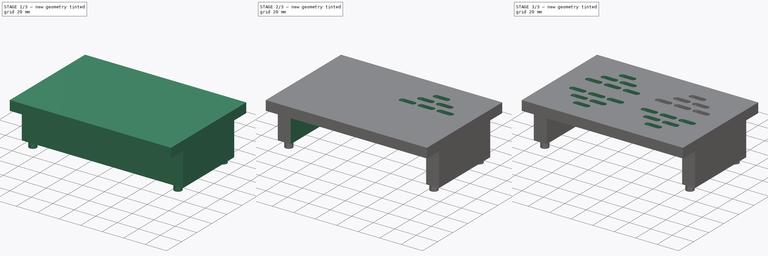
[diagram: build sequence overview — one tinted view per stage of 3, left to right]
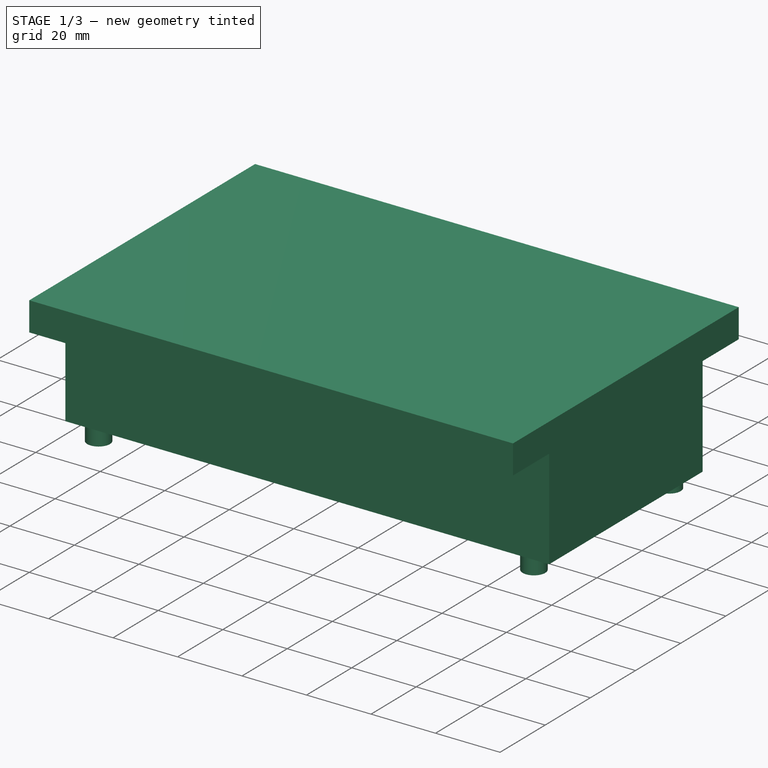
[diagram: stage 1 of 3 — iso view after this stage's code; geometry added in this stage tinted green]
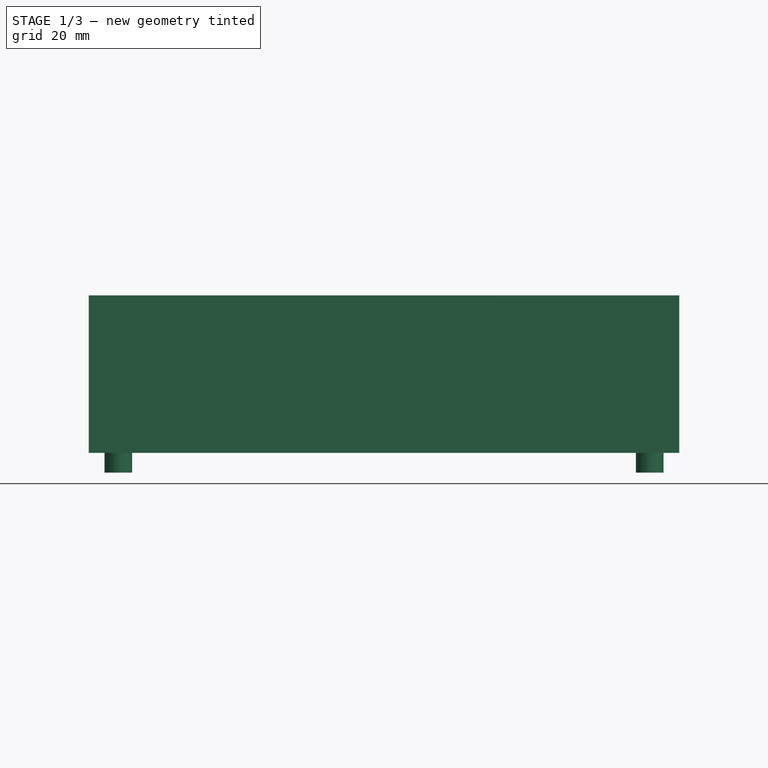
[diagram: stage 1 of 3 — front view after this stage's code; geometry added in this stage tinted green]
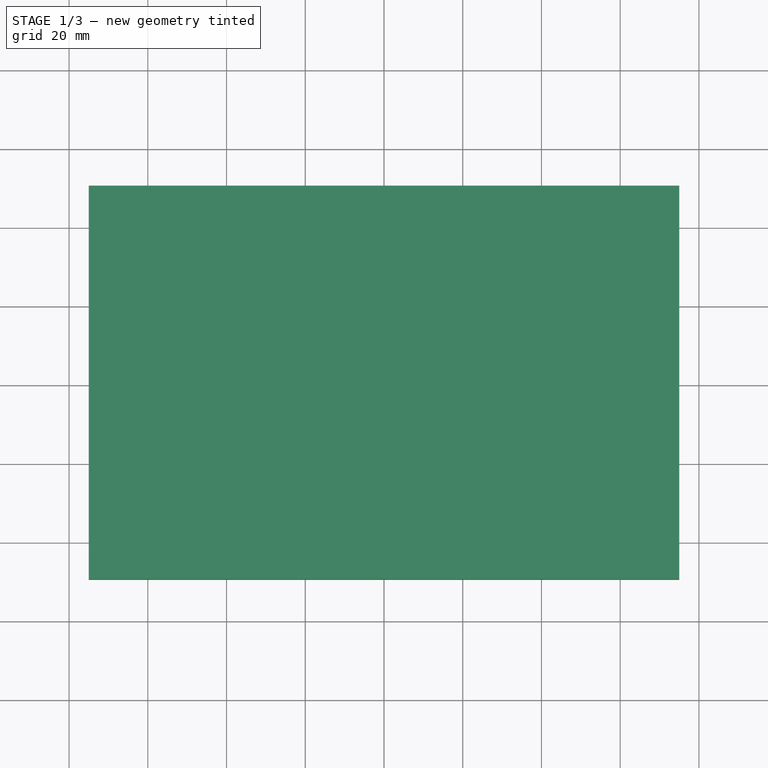
[diagram: stage 1 of 3 — top view after this stage's code; geometry added in this stage tinted green]
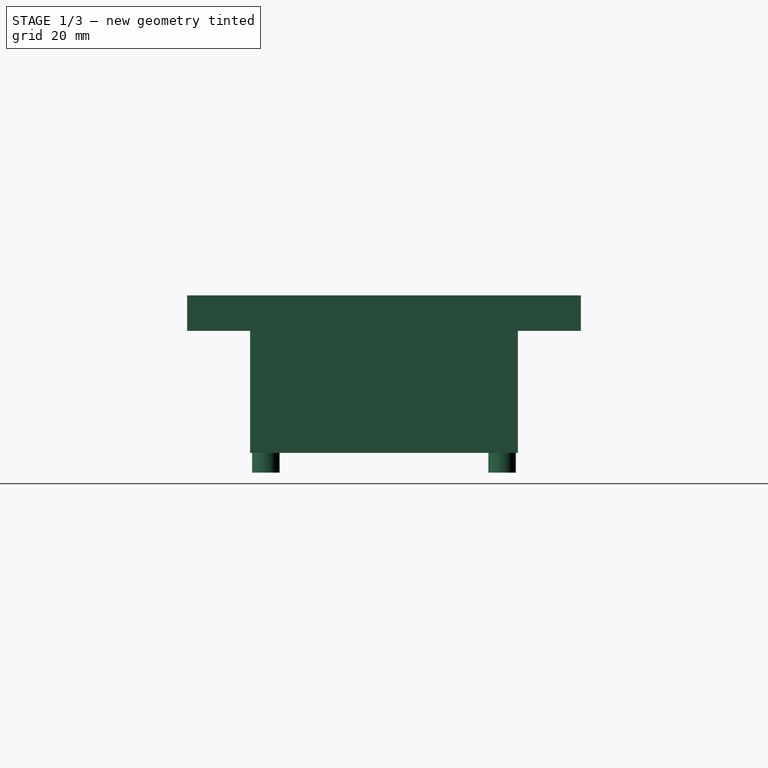
[diagram: stage 1 of 3 — right view after this stage's code; geometry added in this stage tinted green]
FCSTD DOCUMENT  (FreeCAD 0.21R33668 +26 (Git))
Label: tapa
License: All rights reserved
LicenseURL: https://en.wikipedia.org/wiki/All_rights_reserved
objects: Sketcher::SketchObject×6, PartDesign::Pocket×4, PartDesign::Pad×2, PartDesign::Mirrored×2, PartDesign::Body×1
note: 21 computed .brp shape members not serialized (recipe doc carries the construction recipe); baked Part::Feature solids carry a one-line shape summary decoded from their .brp

FEATURE [Sketcher::SketchObject] Sketch
  FullyConstrained = true
  MapMode = 5
  Support = -> [XY_Plane]
  sketch-geometry (4):
    g0: LineSegment StartX=-75 StartY=50 StartZ=0 EndX=75 EndY=50 EndZ=0
    g1: LineSegment StartX=75 StartY=50 StartZ=0 EndX=75 EndY=-50 EndZ=0
    g2: LineSegment StartX=75 StartY=-50 StartZ=0 EndX=-75 EndY=-50 EndZ=0
    g3: LineSegment StartX=-75 StartY=-50 StartZ=0 EndX=-75 EndY=50 EndZ=0
  constraints (12):
    c: Coincident(g0,g1)
    c: Coincident(g1,g2)
    c: Coincident(g2,g3)
    c: Coincident(g3,g0)
    c: Horizontal(g0)
    c: Horizontal(g2)
    c: Vertical(g1)
    c: Vertical(g3)
    c: DistanceY(g3,g3) = 100
    c: DistanceX(g0,g0) = 150
    c: DistanceX(g0,g-1) = 75
    c: DistanceY(g-1,g0) = 50
FEATURE [PartDesign::Pad] Pad
  Direction = (0,0,1)
  Length = 40
  Length2 = 10
  Profile = -> Sketch
  ReferenceAxis = -> Sketch [N_Axis]
  Type = 0
FEATURE [Sketcher::SketchObject] Sketch001
  ExternalGeometry = -> [Pad]
  FullyConstrained = true
  MapMode = 5
  Placement = pos=(0,0,0) rot=(1,0,0;3.14159rad)
  Support = -> [Pad]
  sketch-geometry (4):
    g0: Circle CenterX=67.5 CenterY=30 CenterZ=0 NormalX=0 NormalY=0 NormalZ=1 AngleXU=0 Radius=3.5
    g1: Circle CenterX=67.5 CenterY=-30 CenterZ=0 NormalX=0 NormalY=0 NormalZ=1 AngleXU=0 Radius=3.5
    g2: Circle CenterX=-67.5 CenterY=-30 CenterZ=0 NormalX=0 NormalY=0 NormalZ=1 AngleXU=0 Radius=3.5
    g3: Circle CenterX=-67.5 CenterY=30 CenterZ=0 NormalX=0 NormalY=0 NormalZ=1 AngleXU=0 Radius=3.5
  constraints (12):
    c: DistanceY(g3,g-6) = 20
    c: DistanceY(g-5,g2) = 20
    c: DistanceY(g-4,g1) = 20
    c: DistanceY(g0,g-6) = 20
    c: DistanceX(g-6,g3) = 7.5
    c: DistanceX(g-5,g2) = 7.5
    c: DistanceX(g1,g-4) = 7.5
    c: DistanceX(g0,g-6) = 7.5
    c: Diameter(g3) = 7
    c: Diameter(g0) = 7
    c: Diameter(g1) = 7
    c: Diameter(g2) = 7
FEATURE [PartDesign::Pad] Pad001
  BaseFeature = -> Pad
  Direction = (0,0,-1)
  Length = 5
  Length2 = 10
  Profile = -> Sketch001
  ReferenceAxis = -> Sketch001 [N_Axis]
  Type = 0
FEATURE [Sketcher::SketchObject] Sketch002
  ExternalGeometry = -> [Pad001]
  FullyConstrained = true
  MapMode = 5
  Placement = pos=(75,0,0) rot=(0.57735,0.57735,0.57735;2.0944rad)
  Support = -> [Pad001]
  sketch-geometry (8):
    g0: LineSegment StartX=50 StartY=0 StartZ=0 EndX=34 EndY=0 EndZ=0
    g1: LineSegment StartX=34 StartY=0 StartZ=0 EndX=34 EndY=31 EndZ=0
    g2: LineSegment StartX=34 StartY=31 StartZ=0 EndX=50 EndY=31 EndZ=0
    g3: LineSegment StartX=50 StartY=31 StartZ=0 EndX=50 EndY=0 EndZ=0
    g4: LineSegment StartX=-50 StartY=0 StartZ=0 EndX=-34 EndY=0 EndZ=0
    g5: LineSegment StartX=-34 StartY=0 StartZ=0 EndX=-34 EndY=31 EndZ=0
    g6: LineSegment StartX=-34 StartY=31 StartZ=0 EndX=-50 EndY=31 EndZ=0
    g7: LineSegment StartX=-50 StartY=31 StartZ=0 EndX=-50 EndY=0 EndZ=0
  constraints (22):
    c: Coincident(g0,g1)
    c: Coincident(g1,g2)
    c: Coincident(g2,g3)
    c: Coincident(g3,g0)
    c: Horizontal(g0)
    c: Horizontal(g2)
    c: Vertical(g1)
    c: Vertical(g3)
    c: Coincident(g0,g-5)
    c: Coincident(g4,g5)
    c: Coincident(g5,g6)
    c: Coincident(g6,g7)
    c: Coincident(g7,g4)
    c: Horizontal(g4)
    c: Horizontal(g6)
    c: Vertical(g5)
    c: Vertical(g7)
    c: Coincident(g4,g-6)
    c: DistanceY(g3,g3) = 31
    c: DistanceX(g2,g2) = 16
    c: DistanceX(g6,g6) = 16
    c: DistanceY(g5,g5) = 31
FEATURE [PartDesign::Pocket] Pocket
  BaseFeature = -> Pad001
  Direction = (-1,0,0)
  Length = 150
  Length2 = 5
  Profile = -> Sketch002
  ReferenceAxis = -> Sketch002 [N_Axis]
  Type = 0
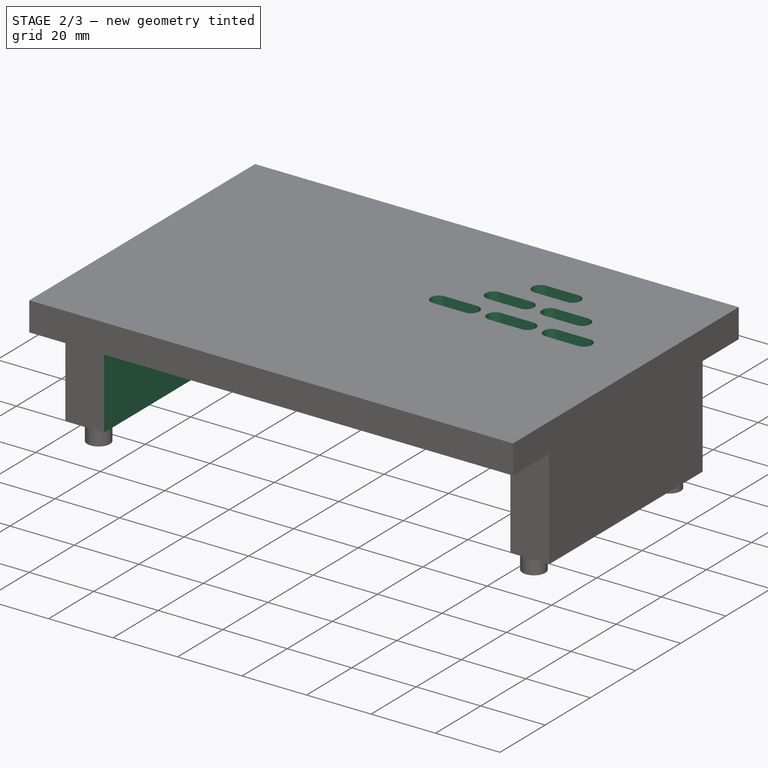
[diagram: stage 2 of 3 — iso view after this stage's code; geometry added in this stage tinted green]
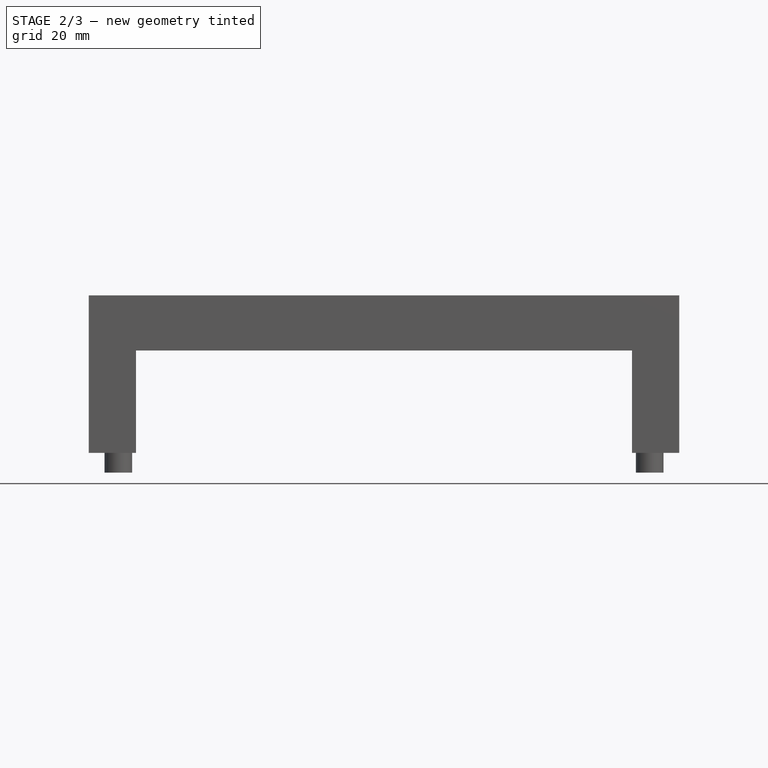
[diagram: stage 2 of 3 — front view after this stage's code; geometry added in this stage tinted green]
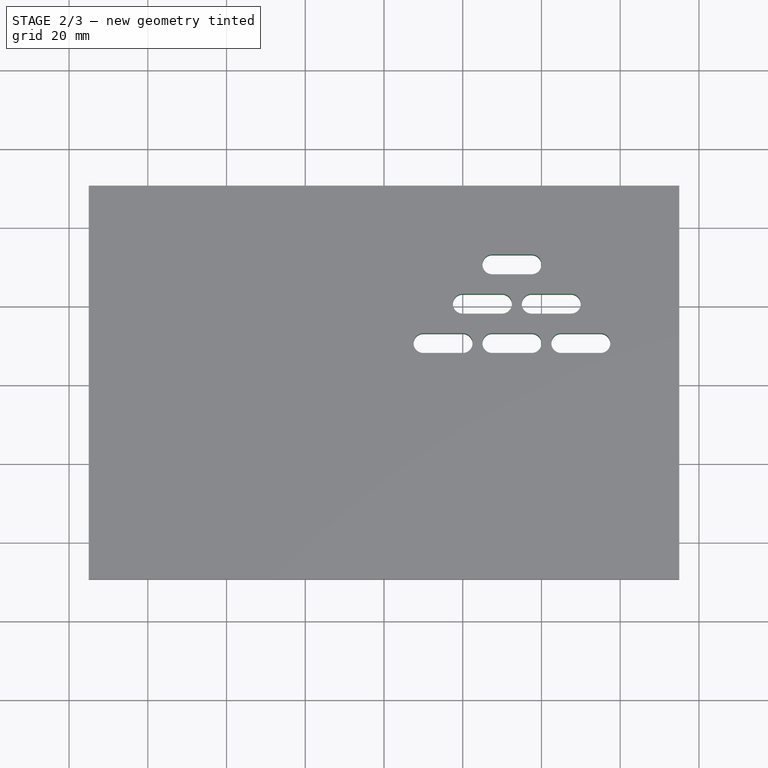
[diagram: stage 2 of 3 — top view after this stage's code; geometry added in this stage tinted green]
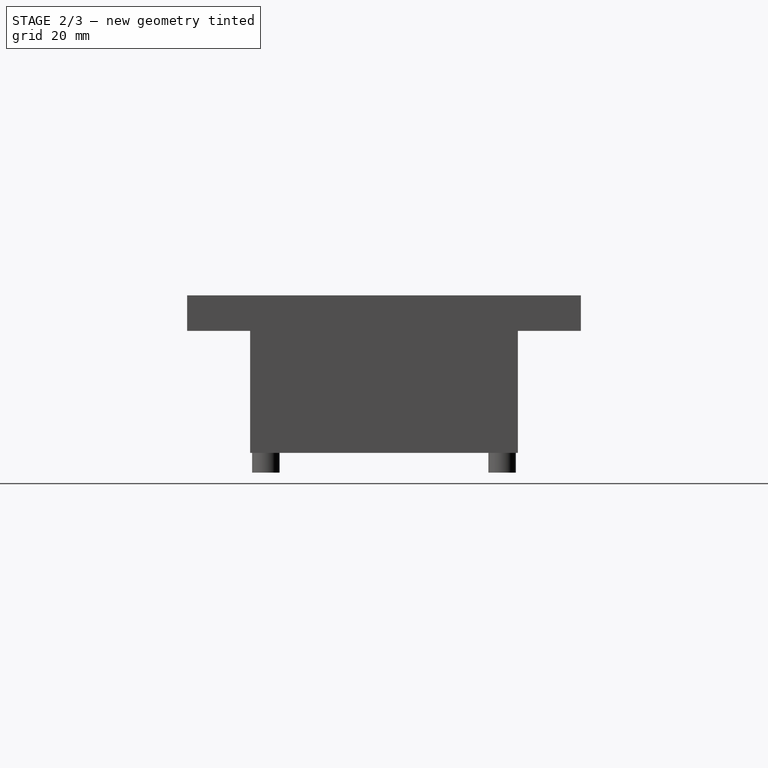
[diagram: stage 2 of 3 — right view after this stage's code; geometry added in this stage tinted green]
FEATURE [Sketcher::SketchObject] Sketch003
  ExternalGeometry = -> [Pocket]
  FullyConstrained = true
  MapMode = 5
  Placement = pos=(0,-34,0) rot=(1,0,0;1.5708rad)
  Support = -> [Pocket]
  sketch-geometry (4):
    g0: LineSegment StartX=-63 StartY=0 StartZ=0 EndX=63 EndY=0 EndZ=0
    g1: LineSegment StartX=63 StartY=0 StartZ=0 EndX=63 EndY=26 EndZ=0
    g2: LineSegment StartX=63 StartY=26 StartZ=0 EndX=-63 EndY=26 EndZ=0
    g3: LineSegment StartX=-63 StartY=26 StartZ=0 EndX=-63 EndY=0 EndZ=0
  constraints (12):
    c: Coincident(g0,g1)
    c: Coincident(g1,g2)
    c: Coincident(g2,g3)
    c: Coincident(g3,g0)
    c: Horizontal(g0)
    c: Horizontal(g2)
    c: Vertical(g1)
    c: Vertical(g3)
    c: PointOnObject(g0,g-3)
    c: DistanceX(g-6,g0) = 12
    c: DistanceX(g0,g-4) = 12
    c: DistanceY(g2,g-8) = 5
FEATURE [PartDesign::Pocket] Pocket001
  BaseFeature = -> Pocket
  Direction = (0,1,-2e-16)
  Length = 100
  Length2 = 5
  Profile = -> Sketch003
  ReferenceAxis = -> Sketch003 [N_Axis]
  Type = 0
FEATURE [Sketcher::SketchObject] Sketch004
  ExternalGeometry = -> [Pocket001]
  FullyConstrained = true
  MapMode = 5
  Placement = pos=(0,0,40) rot=(0,0,1;0rad)
  Support = -> [Pocket001]
  sketch-geometry (24):
    g0: ArcOfCircle CenterX=37.5 CenterY=20 CenterZ=0 NormalX=0 NormalY=0 NormalZ=1 AngleXU=0 Radius=2.5 StartAngle=1.5708 EndAngle=4.71239
    g1: ArcOfCircle CenterX=47.5 CenterY=20 CenterZ=0 NormalX=0 NormalY=0 NormalZ=1 AngleXU=0 Radius=2.5 StartAngle=4.71239 EndAngle=7.85398
    g2: LineSegment StartX=37.5 StartY=17.5 StartZ=0 EndX=47.5 EndY=17.5 EndZ=0
    g3: LineSegment StartX=47.5 StartY=22.5 StartZ=0 EndX=37.5 EndY=22.5 EndZ=0
    g4: ArcOfCircle CenterX=45 CenterY=10 CenterZ=0 NormalX=0 NormalY=0 NormalZ=1 AngleXU=0 Radius=2.5 StartAngle=1.5708 EndAngle=4.71239
    g5: ArcOfCircle CenterX=55 CenterY=10 CenterZ=0 NormalX=0 NormalY=0 NormalZ=1 AngleXU=0 Radius=2.5 StartAngle=4.71239 EndAngle=7.85398
    g6: LineSegment StartX=45 StartY=7.5 StartZ=0 EndX=55 EndY=7.5 EndZ=0
    g7: LineSegment StartX=55 StartY=12.5 StartZ=0 EndX=45 EndY=12.5 EndZ=0
    g8: ArcOfCircle CenterX=27.5 CenterY=30 CenterZ=0 NormalX=0 NormalY=0 NormalZ=1 AngleXU=0 Radius=2.5 StartAngle=1.5708 EndAngle=4.71239
    g9: ArcOfCircle CenterX=37.5 CenterY=30 CenterZ=0 NormalX=0 NormalY=0 NormalZ=1 AngleXU=0 Radius=2.5 StartAngle=4.71239 EndAngle=7.85398
    g10: LineSegment StartX=27.5 StartY=27.5 StartZ=0 EndX=37.5 EndY=27.5 EndZ=0
    g11: LineSegment StartX=37.5 StartY=32.5 StartZ=0 EndX=27.5 EndY=32.5 EndZ=0
    g12: ArcOfCircle CenterX=20 CenterY=20 CenterZ=0 NormalX=0 NormalY=0 NormalZ=1 AngleXU=0 Radius=2.5 StartAngle=1.5708 EndAngle=4.71239
    g13: ArcOfCircle CenterX=30 CenterY=20 CenterZ=0 NormalX=0 NormalY=0 NormalZ=1 AngleXU=0 Radius=2.5 StartAngle=4.71239 EndAngle=7.85398
    g14: LineSegment StartX=20 StartY=17.5 StartZ=0 EndX=30 EndY=17.5 EndZ=0
    g15: LineSegment StartX=30 StartY=22.5 StartZ=0 EndX=20 EndY=22.5 EndZ=0
    g16: ArcOfCircle CenterX=10 CenterY=10 CenterZ=0 NormalX=0 NormalY=0 NormalZ=1 AngleXU=0 Radius=2.5 StartAngle=1.5708 EndAngle=4.71239
    g17: ArcOfCircle CenterX=20 CenterY=10 CenterZ=0 NormalX=0 NormalY=0 NormalZ=1 AngleXU=0 Radius=2.5 StartAngle=4.71239 EndAngle=7.85398
    g18: LineSegment StartX=10 StartY=7.5 StartZ=0 EndX=20 EndY=7.5 EndZ=0
    g19: LineSegment StartX=20 StartY=12.5 StartZ=0 EndX=10 EndY=12.5 EndZ=0
    g20: ArcOfCircle CenterX=27.5 CenterY=10 CenterZ=0 NormalX=0 NormalY=0 NormalZ=1 AngleXU=0 Radius=2.5 StartAngle=1.5708 EndAngle=4.71239
    g21: ArcOfCircle CenterX=37.5 CenterY=10 CenterZ=0 NormalX=0 NormalY=0 NormalZ=1 AngleXU=0 Radius=2.5 StartAngle=4.71239 EndAngle=7.85398
    g22: LineSegment StartX=27.5 StartY=7.5 StartZ=0 EndX=37.5 EndY=7.5 EndZ=0
    g23: LineSegment StartX=37.5 StartY=12.5 StartZ=0 EndX=27.5 EndY=12.5 EndZ=0
  constraints (60):
    c: Tangent(g0,g2) = -1.5708
    c: Tangent(g2,g1) = -1.5708
    c: Tangent(g1,g3) = -1.5708
    c: Tangent(g3,g0) = -1.5708
    c: Equal(g0,g1)
    c: Horizontal(g2)
    c: Tangent(g4,g6) = -1.5708
    c: Tangent(g6,g5) = -1.5708
    c: Tangent(g5,g7) = -1.5708
    c: Tangent(g7,g4) = -1.5708
    c: Equal(g4,g5)
    c: Horizontal(g6)
    c: DistanceY(g4,g4) = 5
    c: DistanceY(g0,g0) = 5
    c: DistanceX(g3,g3) = 10
    c: DistanceX(g7,g7) = 10
    c: DistanceX(g-1,g0) = 37.5
    c: DistanceX(g-1,g4) = 45
    c: Tangent(g8,g10) = -1.5708
    c: Tangent(g10,g9) = -1.5708
    c: Tangent(g9,g11) = -1.5708
    c: Tangent(g11,g8) = -1.5708
    c: Equal(g8,g9)
    c: Horizontal(g10)
    c: DistanceY(g8,g8) = 5
    c: DistanceX(g11,g11) = 10
    c: DistanceY(g-1,g8) = 32.5
    c: DistanceY(g-1,g0) = 22.5
    c: DistanceY(g-1,g4) = 12.5
    c: Tangent(g12,g14) = -1.5708
    c: Tangent(g14,g13) = -1.5708
    c: Tangent(g13,g15) = -1.5708
    c: Tangent(g15,g12) = -1.5708
    c: Equal(g12,g13)
    c: Horizontal(g14)
    c: Tangent(g16,g18) = -1.5708
    c: Tangent(g18,g17) = -1.5708
    c: Tangent(g17,g19) = -1.5708
    c: Tangent(g19,g16) = -1.5708
    c: Equal(g16,g17)
    c: Horizontal(g18)
    c: Tangent(g20,g22) = -1.5708
    c: Tangent(g22,g21) = -1.5708
    c: Tangent(g21,g23) = -1.5708
    c: Tangent(g23,g20) = -1.5708
    c: Equal(g20,g21)
    c: Horizontal(g22)
    c: DistanceX(g15,g15) = 10
    c: DistanceX(g19,g19) = 10
    c: DistanceX(g23,g23) = 10
    c: DistanceY(g12,g12) = 5
    c: DistanceY(g16,g16) = 5
    c: DistanceY(g20,g20) = 5
    c: DistanceX(g-1,g20) = 27.5
    c: DistanceY(g21,g4) = 0
    c: DistanceY(g17,g20) = 0
    c: DistanceX(g-1,g16) = 10
    c: DistanceX(g-1,g12) = 20
    c: DistanceY(g0,g12) = 0
    c: DistanceX(g8,g20) = 0
FEATURE [PartDesign::Pocket] Pocket002
  BaseFeature = -> Pocket001
  Direction = (0,0,-1)
  Length = 17
  Length2 = 5
  Profile = -> Sketch004
  ReferenceAxis = -> Sketch004 [N_Axis]
  Type = 0
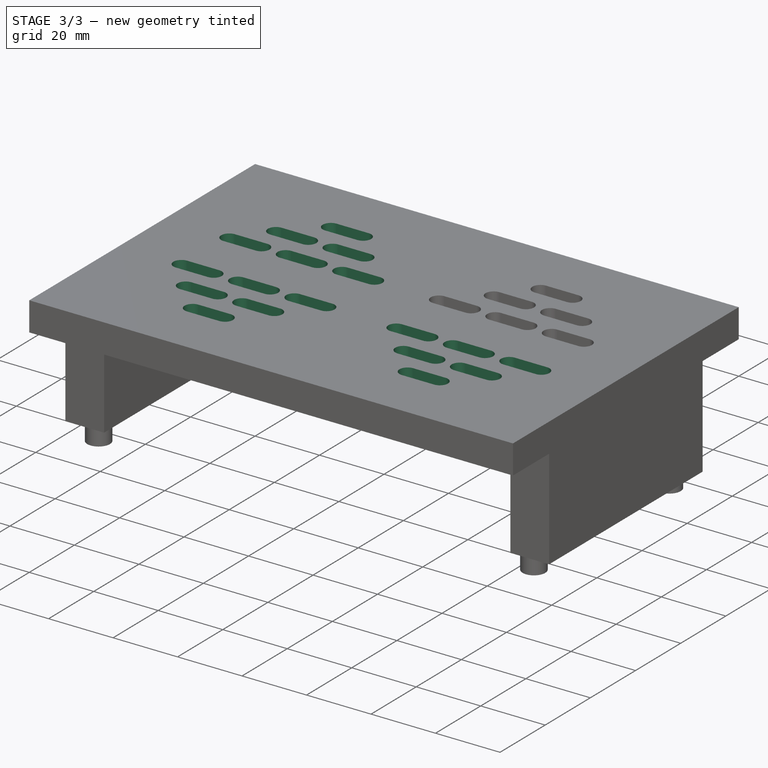
[diagram: stage 3 of 3 — iso view after this stage's code; geometry added in this stage tinted green]
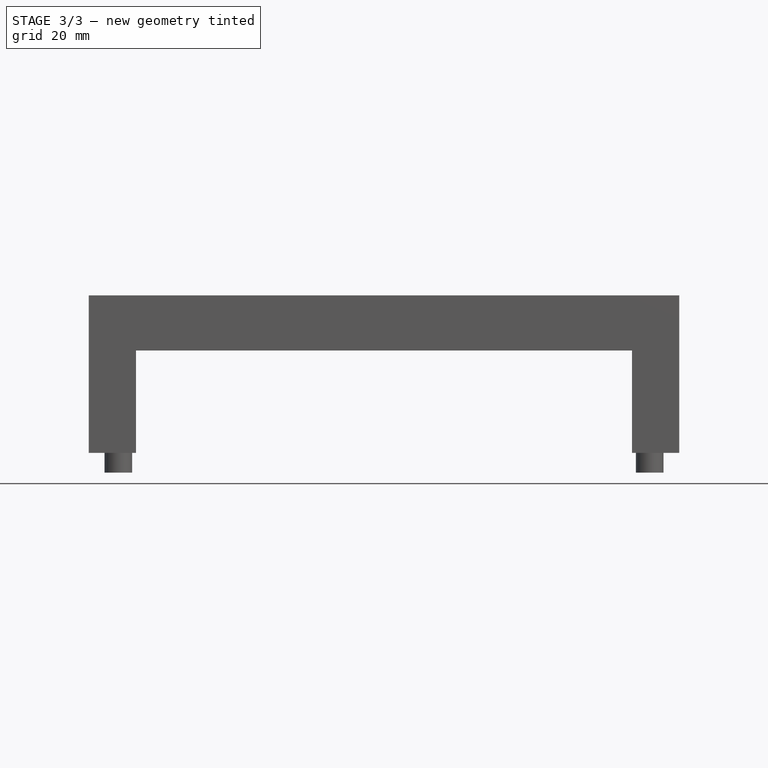
[diagram: stage 3 of 3 — front view after this stage's code; geometry added in this stage tinted green]
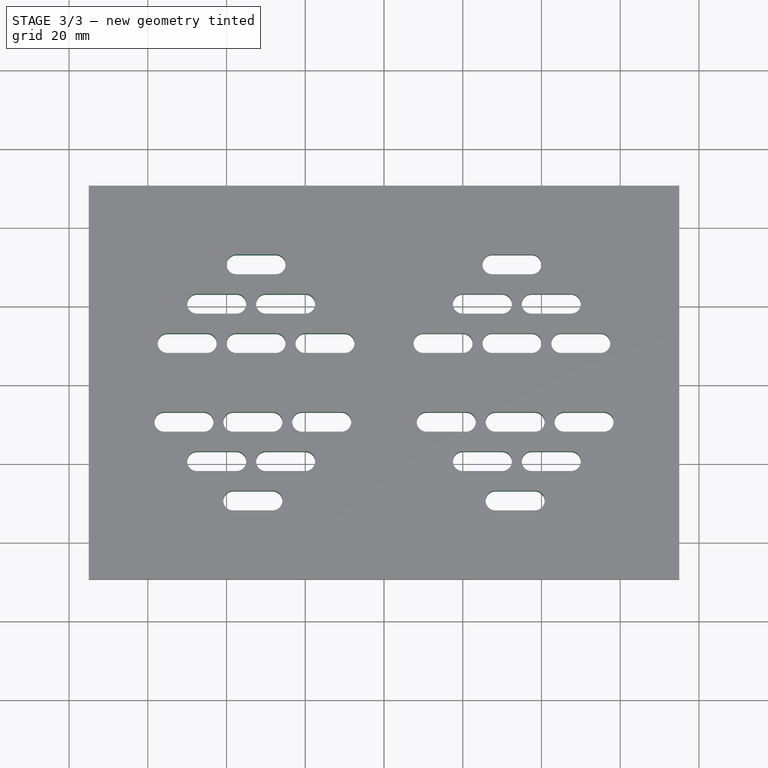
[diagram: stage 3 of 3 — top view after this stage's code; geometry added in this stage tinted green]
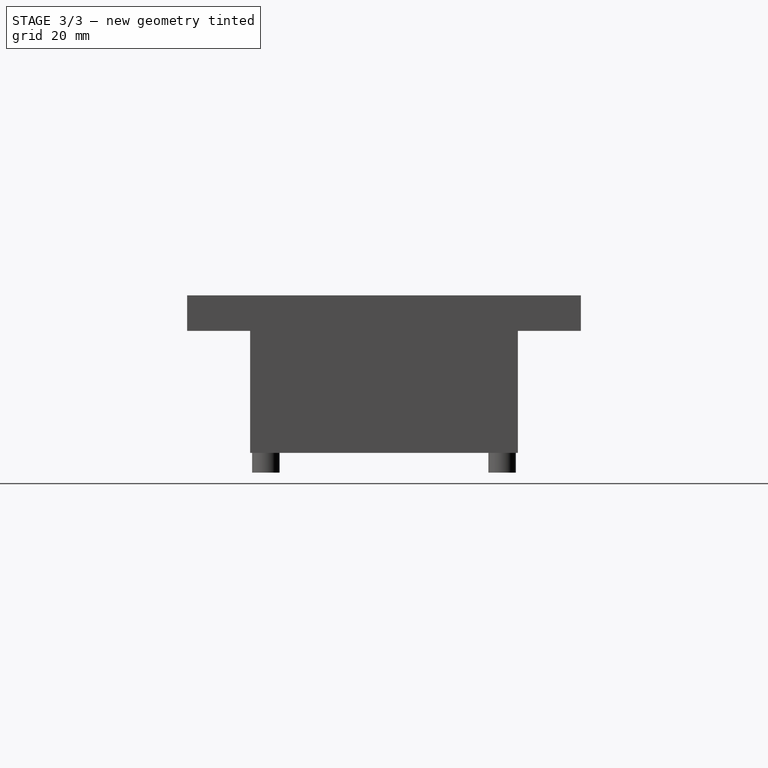
[diagram: stage 3 of 3 — right view after this stage's code; geometry added in this stage tinted green]
FEATURE [Sketcher::SketchObject] Sketch005
  FullyConstrained = false
  MapMode = 5
  Placement = pos=(0,0,40) rot=(0,0,1;0rad)
  Support = -> [Pocket002]
  sketch-geometry (24):
    g0: ArcOfCircle CenterX=10.8168 CenterY=-10 CenterZ=0 NormalX=0 NormalY=0 NormalZ=1 AngleXU=0 Radius=2.5 StartAngle=1.5708 EndAngle=4.71239
    g1: ArcOfCircle CenterX=20.8168 CenterY=-10 CenterZ=0 NormalX=0 NormalY=0 NormalZ=1 AngleXU=0 Radius=2.5 StartAngle=4.71239 EndAngle=7.85398
    g2: LineSegment StartX=10.8168 StartY=-12.5 StartZ=0 EndX=20.8168 EndY=-12.5 EndZ=0
    g3: LineSegment StartX=20.8168 StartY=-7.5 StartZ=0 EndX=10.8168 EndY=-7.5 EndZ=0
    g4: ArcOfCircle CenterX=28.3168 CenterY=-10 CenterZ=0 NormalX=0 NormalY=0 NormalZ=1 AngleXU=0 Radius=2.5 StartAngle=1.5708 EndAngle=4.71239
    g5: ArcOfCircle CenterX=38.3168 CenterY=-10 CenterZ=0 NormalX=0 NormalY=0 NormalZ=1 AngleXU=0 Radius=2.5 StartAngle=4.71239 EndAngle=7.85398
    g6: LineSegment StartX=28.3168 StartY=-12.5 StartZ=0 EndX=38.3168 EndY=-12.5 EndZ=0
    g7: LineSegment StartX=38.3168 StartY=-7.5 StartZ=0 EndX=28.3168 EndY=-7.5 EndZ=0
    g8: ArcOfCircle CenterX=45.8168 CenterY=-10 CenterZ=0 NormalX=0 NormalY=0 NormalZ=1 AngleXU=0 Radius=2.5 StartAngle=1.5708 EndAngle=4.71239
    g9: ArcOfCircle CenterX=55.8168 CenterY=-10 CenterZ=0 NormalX=0 NormalY=0 NormalZ=1 AngleXU=0 Radius=2.5 StartAngle=4.71239 EndAngle=7.85398
    g10: LineSegment StartX=45.8168 StartY=-12.5 StartZ=0 EndX=55.8168 EndY=-12.5 EndZ=0
    g11: LineSegment StartX=55.8168 StartY=-7.5 StartZ=0 EndX=45.8168 EndY=-7.5 EndZ=0
    g12: ArcOfCircle CenterX=20 CenterY=-20 CenterZ=0 NormalX=0 NormalY=0 NormalZ=1 AngleXU=0 Radius=2.5 StartAngle=1.5708 EndAngle=4.71239
    g13: ArcOfCircle CenterX=30 CenterY=-20 CenterZ=0 NormalX=0 NormalY=0 NormalZ=1 AngleXU=0 Radius=2.5 StartAngle=4.71239 EndAngle=7.85398
    g14: LineSegment StartX=20 StartY=-22.5 StartZ=0 EndX=30 EndY=-22.5 EndZ=0
    g15: LineSegment StartX=30 StartY=-17.5 StartZ=0 EndX=20 EndY=-17.5 EndZ=0
    g16: ArcOfCircle CenterX=37.5 CenterY=-20 CenterZ=0 NormalX=0 NormalY=0 NormalZ=1 AngleXU=0 Radius=2.5 StartAngle=1.5708 EndAngle=4.71239
    g17: ArcOfCircle CenterX=47.5 CenterY=-20 CenterZ=0 NormalX=0 NormalY=0 NormalZ=1 AngleXU=0 Radius=2.5 StartAngle=4.71239 EndAngle=7.85398
    g18: LineSegment StartX=37.5 StartY=-22.5 StartZ=0 EndX=47.5 EndY=-22.5 EndZ=0
    g19: LineSegment StartX=47.5 StartY=-17.5 StartZ=0 EndX=37.5 EndY=-17.5 EndZ=0
    g20: ArcOfCircle CenterX=28.3168 CenterY=-30 CenterZ=0 NormalX=0 NormalY=0 NormalZ=1 AngleXU=0 Radius=2.5 StartAngle=1.5708 EndAngle=4.71239
    g21: ArcOfCircle CenterX=38.3168 CenterY=-30 CenterZ=0 NormalX=0 NormalY=0 NormalZ=1 AngleXU=0 Radius=2.5 StartAngle=4.71239 EndAngle=7.85398
    g22: LineSegment StartX=28.3168 StartY=-32.5 StartZ=0 EndX=38.3168 EndY=-32.5 EndZ=0
    g23: LineSegment StartX=38.3168 StartY=-27.5 StartZ=0 EndX=28.3168 EndY=-27.5 EndZ=0
  constraints (59):
    c: Tangent(g0,g2) = -1.5708
    c: Tangent(g2,g1) = -1.5708
    c: Tangent(g1,g3) = -1.5708
    c: Tangent(g3,g0) = -1.5708
    c: Equal(g0,g1)
    c: Horizontal(g2)
    c: Tangent(g4,g6) = -1.5708
    c: Tangent(g6,g5) = -1.5708
    c: Tangent(g5,g7) = -1.5708
    c: Tangent(g7,g4) = -1.5708
    c: Equal(g4,g5)
    c: Horizontal(g6)
    c: Tangent(g8,g10) = -1.5708
    c: Tangent(g10,g9) = -1.5708
    c: Tangent(g9,g11) = -1.5708
    c: Tangent(g11,g8) = -1.5708
    c: Equal(g8,g9)
    c: Horizontal(g10)
    c: Tangent(g12,g14) = -1.5708
    c: Tangent(g14,g13) = -1.5708
    c: Tangent(g13,g15) = -1.5708
    c: Tangent(g15,g12) = -1.5708
    c: Equal(g12,g13)
    c: Horizontal(g14)
    c: Tangent(g16,g18) = -1.5708
    c: Tangent(g18,g17) = -1.5708
    c: Tangent(g17,g19) = -1.5708
    c: Tangent(g19,g16) = -1.5708
    c: Equal(g16,g17)
    c: Horizontal(g18)
    c: Tangent(g20,g22) = -1.5708
    c: Tangent(g22,g21) = -1.5708
    c: Tangent(g21,g23) = -1.5708
    c: Tangent(g23,g20) = -1.5708
    c: Equal(g20,g21)
    c: Horizontal(g22)
    c: DistanceX(g3,g3) = 10
    c: DistanceX(g7,g7) = 10
    c: DistanceX(g11,g11) = 10
    c: DistanceX(g15,g15) = 10
    c: DistanceX(g19,g19) = 10
    c: DistanceX(g23,g23) = 10
    c: DistanceY(g0,g0) = 5
    c: DistanceY(g4,g4) = 5
    c: DistanceY(g8,g8) = 5
    c: DistanceY(g16,g16) = 5
    c: DistanceY(g12,g12) = 5
    c: DistanceY(g20,g20) = 5
    c: DistanceY(g4,g1) = 0
    c: DistanceY(g8,g4) = 0
    c: DistanceY(g13,g16) = 0
    c: DistanceX(g1,g4) = 7.5
    c: DistanceX(g5,g8) = 7.5
    c: DistanceY(g0,g-1) = 12.5
    c: DistanceY(g12,g-1) = 22.5
    c: DistanceY(g20,g-1) = 32.5
    c: DistanceX(g20,g4) = 0
    c: DistanceX(g13,g16) = 7.5
    c: DistanceX(g-1,g12) = 20
FEATURE [PartDesign::Pocket] Pocket003
  BaseFeature = -> Pocket002
  Direction = (0,0,-1)
  Length = 18
  Length2 = 5
  Profile = -> Sketch005
  ReferenceAxis = -> Sketch005 [N_Axis]
  Type = 0
FEATURE [PartDesign::Mirrored] Mirrored
  BaseFeature = -> Pocket003
  MirrorPlane = -> Sketch004 [V_Axis]
  Originals = -> [Pocket002]
FEATURE [PartDesign::Mirrored] Mirrored001
  BaseFeature = -> Mirrored
  MirrorPlane = -> Sketch005 [V_Axis]
  Originals = -> [Pocket003]
FEATURE [PartDesign::Body] Body
  Group = -> [Sketch,Pad,Sketch001,Pad001,Sketch002,Pocket,Sketch003,Pocket001,Sketch004,Pocket002,Sketch005,Pocket003,Mirrored,Mirrored001]
  Origin = -> Origin
  Tip = -> Mirrored001
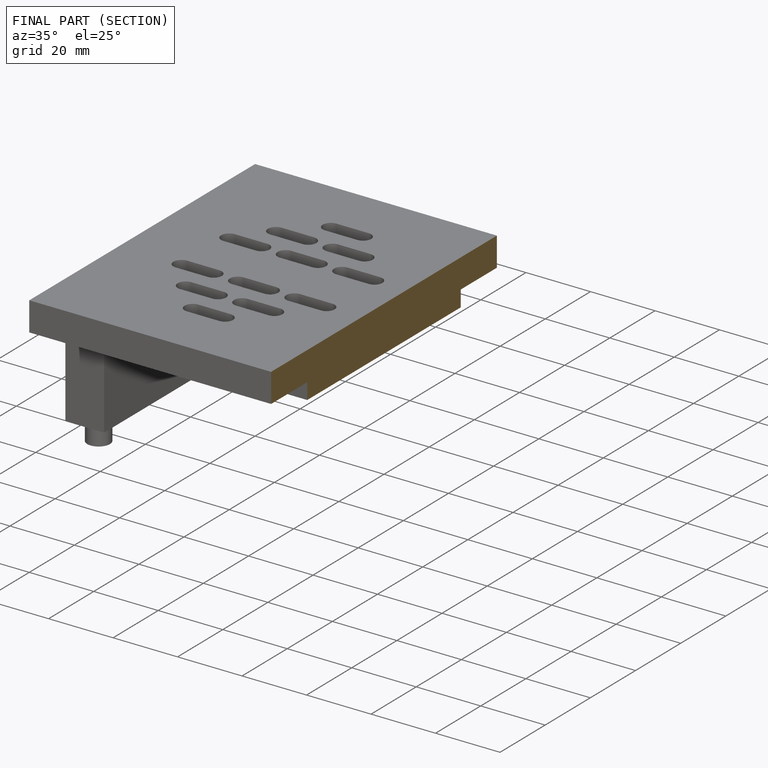
[diagram: finished part — half-section view (interior)]
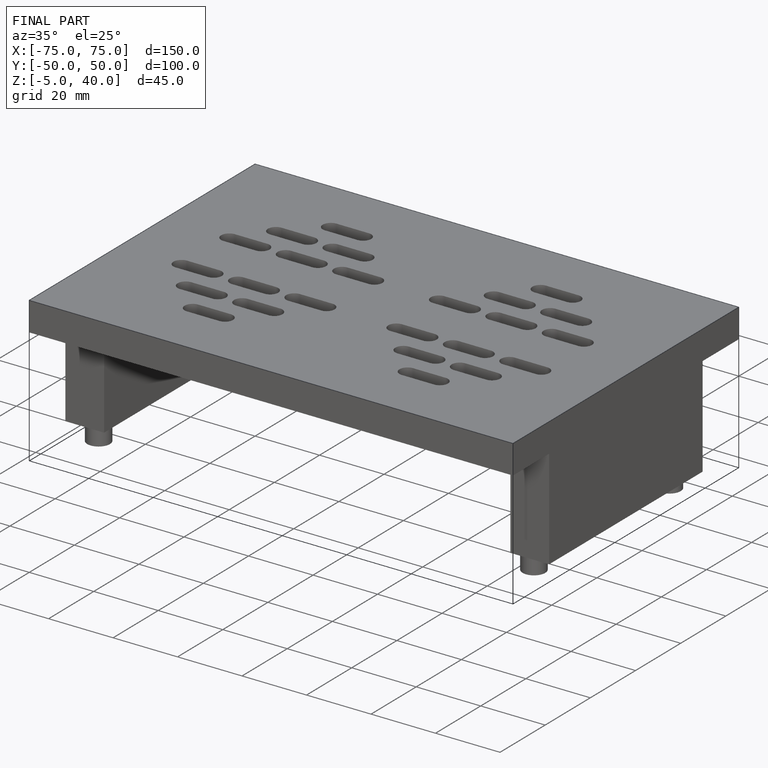
[diagram: finished part — iso view with bounding-box wireframe]
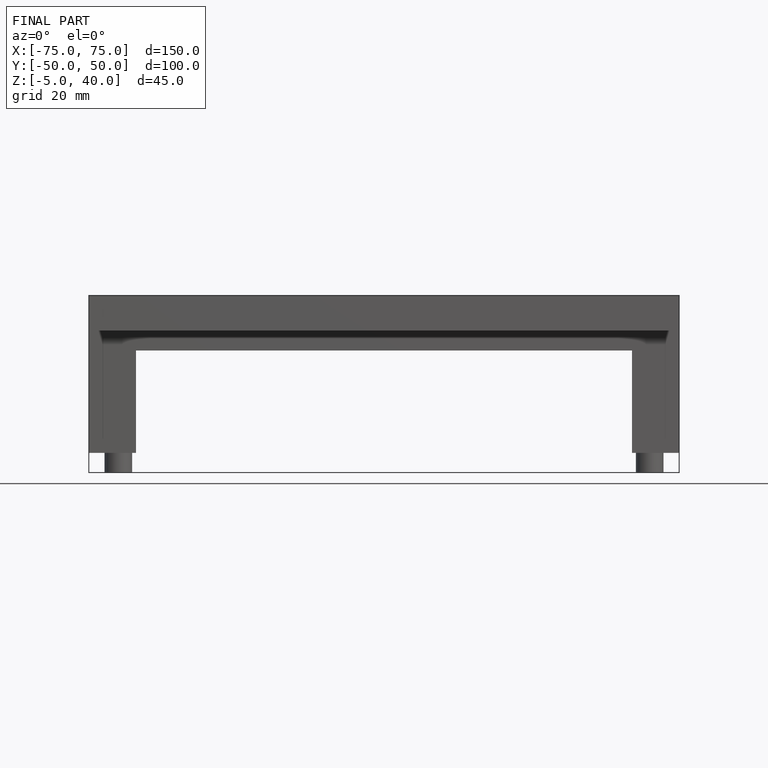
[diagram: finished part — front view with bounding-box wireframe]
